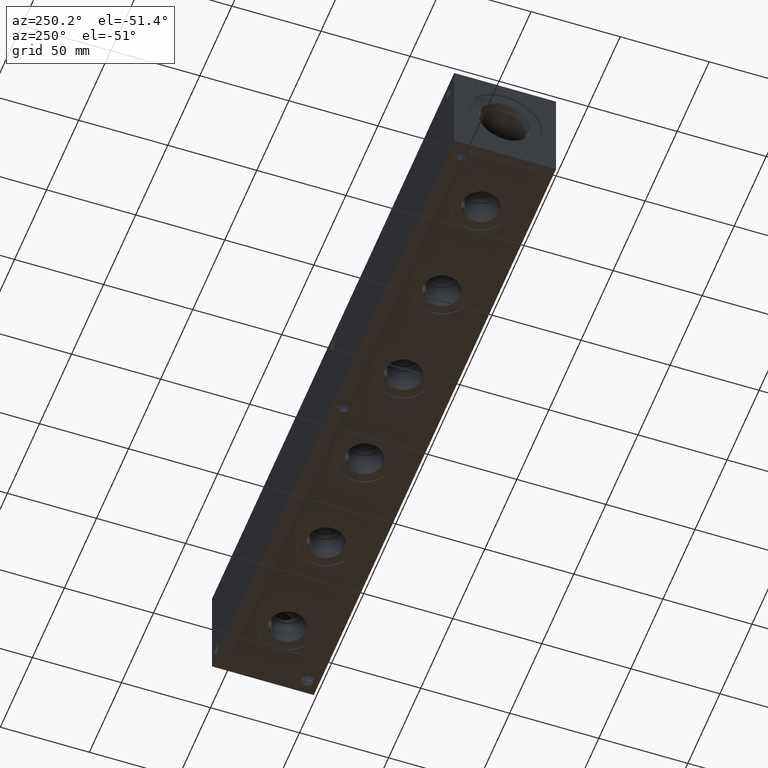
[diagram: clean part render]
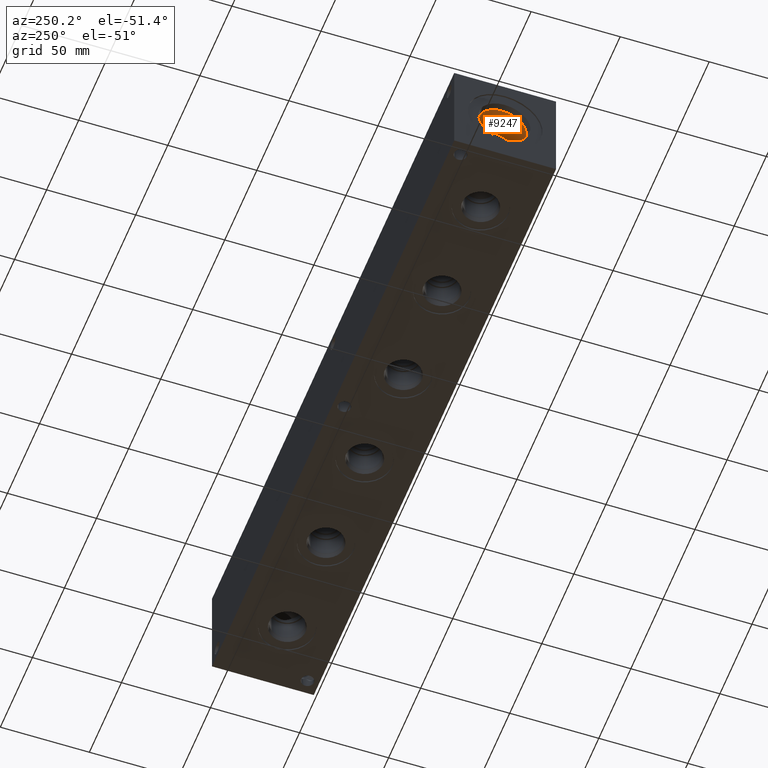
[diagram: same view with one face highlighted and labeled with its STEP entity id]
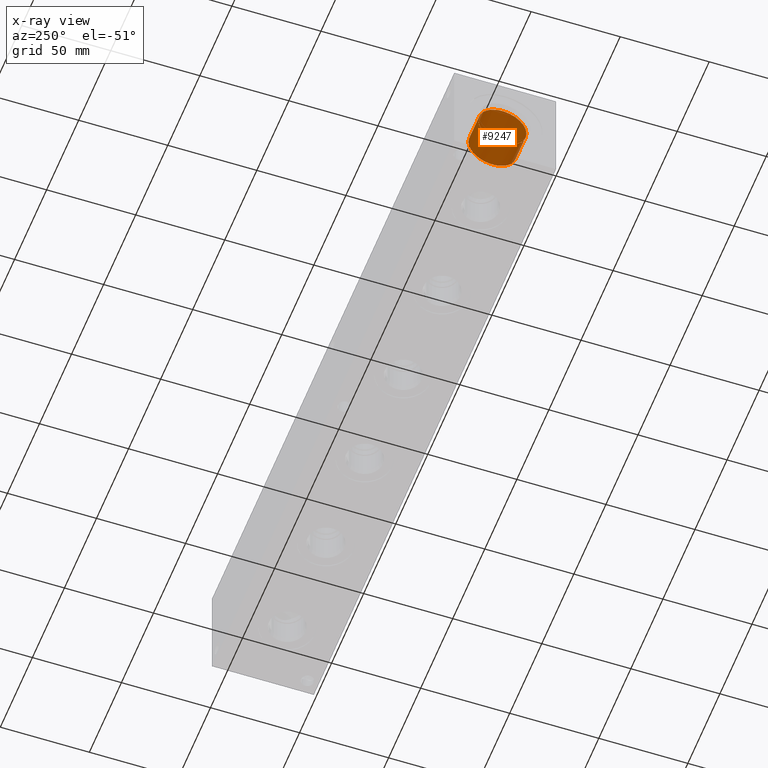
[diagram: x-ray of the same camera — body ghosted, the highlighted face saturated]
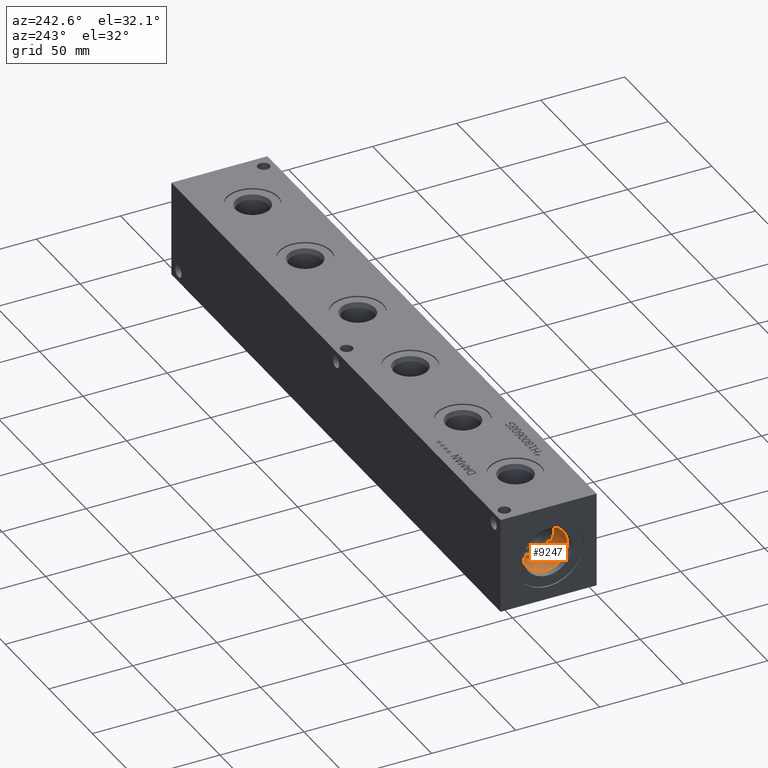
[diagram: same view with one face highlighted and labeled with its STEP entity id]
A machine part, auxiliary view. The second image highlights one B-rep face of the part: STEP entity #9247.
The next image is the same camera in x-ray: the body ghosted, the highlighted face saturated — about 0% of this face is hidden behind the body in this view.
A second angle (auxiliary view) of the same face is appended — the face is thin or edge-on in the first view.
In plain terms, the highlighted cylindrical surface (bore or boss wall) has radius 13.495 mm, axis along (-1, 0, 0).
Its self-contained STEP definition (entity closure, byte-faithful):
#88=CYLINDRICAL_SURFACE('',#9686,13.495);
#211=CIRCLE('',#9683,13.495);
#212=CIRCLE('',#9684,13.495);
#214=CIRCLE('',#9687,13.495);
#215=CIRCLE('',#9688,13.495);
#1091=FACE_OUTER_BOUND('',#1618,.T.);
#1618=EDGE_LOOP('',(#7730,#7731,#7732,#7733,#7734,#7735));
#2462=LINE('',#15770,#3241);
#3241=VECTOR('',#11282,13.495);
#4274=VERTEX_POINT('',#15760);
#4275=VERTEX_POINT('',#15761);
#4277=VERTEX_POINT('',#15767);
#4278=VERTEX_POINT('',#15768);
#5483=EDGE_CURVE('',#4274,#4275,#211,.T.);
#5484=EDGE_CURVE('',#4275,#4274,#212,.T.);
#5486=EDGE_CURVE('',#4277,#4278,#214,.T.);
#5487=EDGE_CURVE('',#4277,#4275,#2462,.T.);
#5488=EDGE_CURVE('',#4278,#4277,#215,.T.);
#7730=ORIENTED_EDGE('',*,*,#5486,.F.);
#7731=ORIENTED_EDGE('',*,*,#5487,.T.);
#7732=ORIENTED_EDGE('',*,*,#5483,.F.);
#7733=ORIENTED_EDGE('',*,*,#5484,.F.);
#7734=ORIENTED_EDGE('',*,*,#5487,.F.);
#7735=ORIENTED_EDGE('',*,*,#5488,.F.);
#9247=ADVANCED_FACE('',(#1091),#88,.F.);
#9683=AXIS2_PLACEMENT_3D('',#15762,#11272,#11273);
#9684=AXIS2_PLACEMENT_3D('',#15763,#11274,#11275);
#9686=AXIS2_PLACEMENT_3D('',#15766,#11278,#11279);
#9687=AXIS2_PLACEMENT_3D('',#15769,#11280,#11281);
#9688=AXIS2_PLACEMENT_3D('',#15771,#11283,#11284);
#11272=DIRECTION('center_axis',(-1.,0.,0.));
#11273=DIRECTION('ref_axis',(0.,1.,0.));
#11274=DIRECTION('center_axis',(-1.,0.,0.));
#11275=DIRECTION('ref_axis',(0.,1.,0.));
#11278=DIRECTION('center_axis',(-1.,0.,0.));
#11279=DIRECTION('ref_axis',(0.,1.,0.));
#11280=DIRECTION('center_axis',(1.,0.,0.));
#11281=DIRECTION('ref_axis',(0.,1.,0.));
#11282=DIRECTION('',(1.,0.,0.));
#11283=DIRECTION('center_axis',(1.,0.,0.));
#11284=DIRECTION('ref_axis',(0.,1.,0.));
#15760=CARTESIAN_POINT('',(19.8374,42.07,28.575));
#15761=CARTESIAN_POINT('',(19.8374,15.08,28.575));
#15762=CARTESIAN_POINT('Origin',(19.8374,28.575,28.575));
#15763=CARTESIAN_POINT('Origin',(19.8374,28.575,28.575));
#15766=CARTESIAN_POINT('Origin',(9.9187,28.575,28.575));
#15767=CARTESIAN_POINT('',(4.285,15.08,28.575));
#15768=CARTESIAN_POINT('',(4.285,28.575,15.08));
#15769=CARTESIAN_POINT('Origin',(4.285,28.575,28.575));
#15770=CARTESIAN_POINT('',(9.9187,15.08,28.575));
#15771=CARTESIAN_POINT('Origin',(4.285,28.575,28.575));